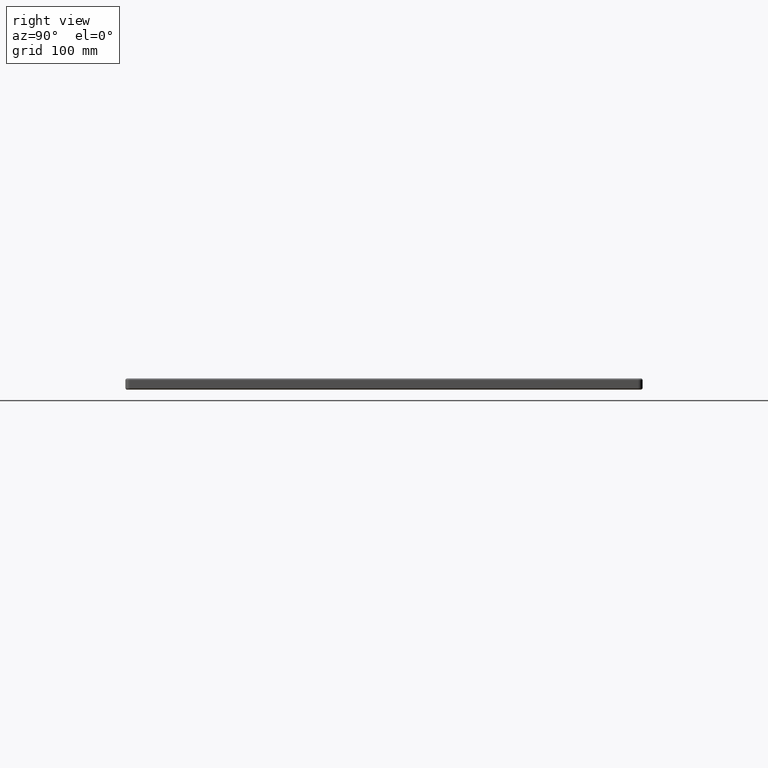
[diagram: clean part render]
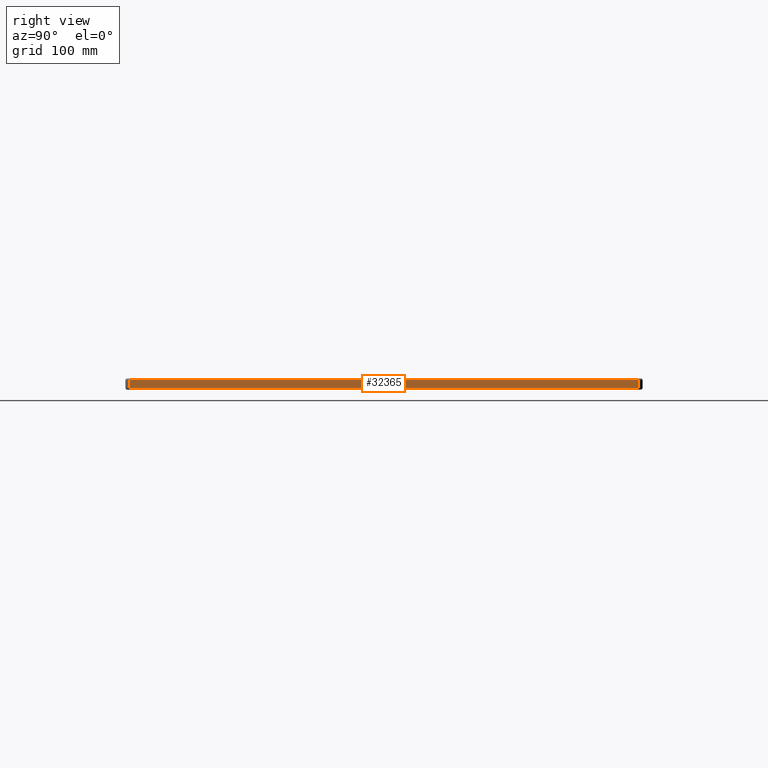
[diagram: same view with one face highlighted and labeled with its STEP entity id]
A machine part, right view. The second image highlights one B-rep face of the part: STEP entity #32365.
In plain terms, the highlighted planar face has unit normal (1, 0, 0).
Its self-contained STEP definition (entity closure, byte-faithful):
#636 = FACE_OUTER_BOUND ( 'NONE', #15169, .T. ) ;
#2892 = DIRECTION ( 'NONE',  ( 0.0000000000000000000, 0.0000000000000000000, 1.000000000000000000 ) ) ;
#3606 = CARTESIAN_POINT ( 'NONE',  ( 600.0000000000000000, 0.0000000000000000000, -11.00000000000000000 ) ) ;
#3759 = CARTESIAN_POINT ( 'NONE',  ( 600.0000000000000000, 594.9999999999998900, -2.000000000000000000 ) ) ;
#3906 = EDGE_CURVE ( 'NONE', #18522, #28828, #17232, .T. ) ;
#3929 = ORIENTED_EDGE ( 'NONE', *, *, #33252, .T. ) ;
#4638 = DIRECTION ( 'NONE',  ( 0.0000000000000000000, 0.0000000000000000000, -1.000000000000000000 ) ) ;
#6171 = LINE ( 'NONE', #9083, #7652 ) ;
#6195 = VERTEX_POINT ( 'NONE', #11826 ) ;
#7652 = VECTOR ( 'NONE', #31084, 1000.000000000000000 ) ;
#7918 = CARTESIAN_POINT ( 'NONE',  ( 600.0000000000000000, 4.999999999999999100, -11.00000000000000000 ) ) ;
#7953 = PLANE ( 'NONE',  #20126 ) ;
#9083 = CARTESIAN_POINT ( 'NONE',  ( 600.0000000000000000, 5.000000000000004400, -2.000000000000000000 ) ) ;
#9897 = CARTESIAN_POINT ( 'NONE',  ( 600.0000000000000000, 4.999999999999999100, -13.00000000000000000 ) ) ;
#11688 = EDGE_CURVE ( 'NONE', #33690, #18522, #6171, .T. ) ;
#11826 = CARTESIAN_POINT ( 'NONE',  ( 600.0000000000000000, 594.9999999999998900, -11.00000000000000000 ) ) ;
#15124 = ORIENTED_EDGE ( 'NONE', *, *, #11688, .T. ) ;
#15169 = EDGE_LOOP ( 'NONE', ( #19780, #39932, #3929, #15124 ) ) ;
#17232 = LINE ( 'NONE', #9897, #31569 ) ;
#18522 = VERTEX_POINT ( 'NONE', #33500 ) ;
#19780 = ORIENTED_EDGE ( 'NONE', *, *, #3906, .T. ) ;
#20126 = AXIS2_PLACEMENT_3D ( 'NONE', #33117, #29910, #4638 ) ;
#22542 = DIRECTION ( 'NONE',  ( 0.0000000000000000000, -0.0000000000000000000, -1.000000000000000000 ) ) ;
#25576 = VECTOR ( 'NONE', #2892, 1000.000000000000000 ) ;
#26746 = LINE ( 'NONE', #3606, #30716 ) ;
#27660 = EDGE_CURVE ( 'NONE', #28828, #6195, #26746, .T. ) ;
#28828 = VERTEX_POINT ( 'NONE', #7918 ) ;
#29910 = DIRECTION ( 'NONE',  ( 1.000000000000000000, 0.0000000000000000000, 0.0000000000000000000 ) ) ;
#29990 = LINE ( 'NONE', #37691, #25576 ) ;
#30716 = VECTOR ( 'NONE', #31780, 1000.000000000000000 ) ;
#31084 = DIRECTION ( 'NONE',  ( -0.0000000000000000000, -1.000000000000000000, 0.0000000000000000000 ) ) ;
#31569 = VECTOR ( 'NONE', #22542, 1000.000000000000000 ) ;
#31780 = DIRECTION ( 'NONE',  ( -0.0000000000000000000, 1.000000000000000000, 0.0000000000000000000 ) ) ;
#32365 = ADVANCED_FACE ( 'NONE', ( #636 ), #7953, .T. ) ;
#33117 = CARTESIAN_POINT ( 'NONE',  ( 600.0000000000000000, 0.0000000000000000000, -13.00000000000000000 ) ) ;
#33252 = EDGE_CURVE ( 'NONE', #6195, #33690, #29990, .T. ) ;
#33500 = CARTESIAN_POINT ( 'NONE',  ( 600.0000000000000000, 4.999999999999999100, -2.000000000000000000 ) ) ;
#33690 = VERTEX_POINT ( 'NONE', #3759 ) ;
#37691 = CARTESIAN_POINT ( 'NONE',  ( 600.0000000000000000, 594.9999999999998900, -13.00000000000000000 ) ) ;
#39932 = ORIENTED_EDGE ( 'NONE', *, *, #27660, .T. ) ;